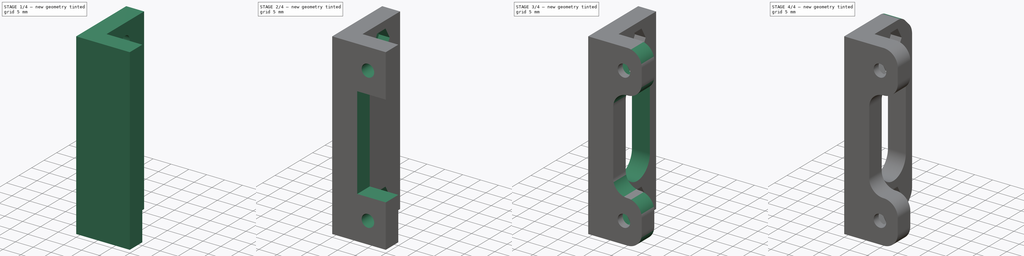
[diagram: build sequence overview — one tinted view per stage of 4, left to right]
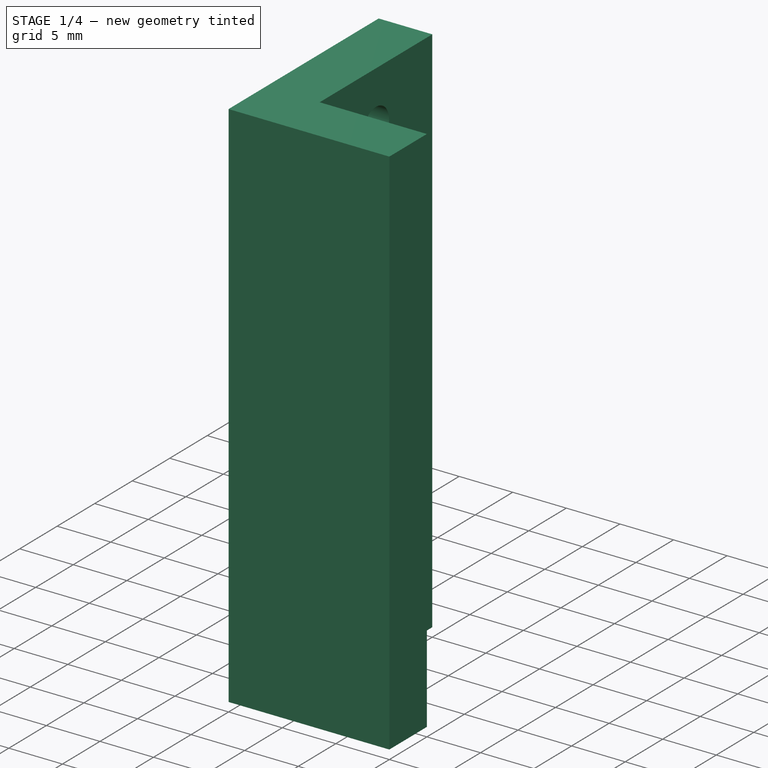
[diagram: stage 1 of 4 — iso view after this stage's code; geometry added in this stage tinted green]
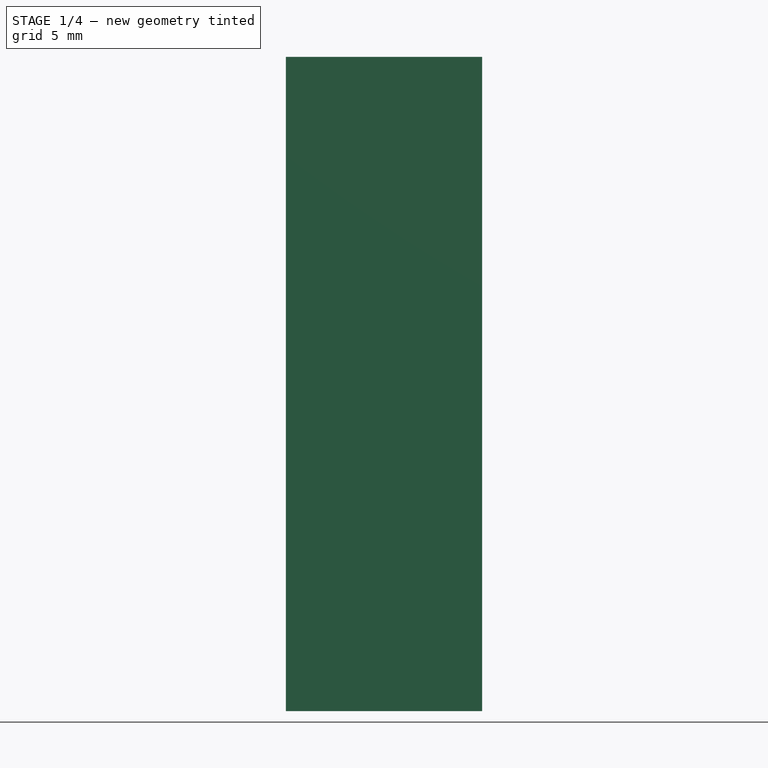
[diagram: stage 1 of 4 — front view after this stage's code; geometry added in this stage tinted green]
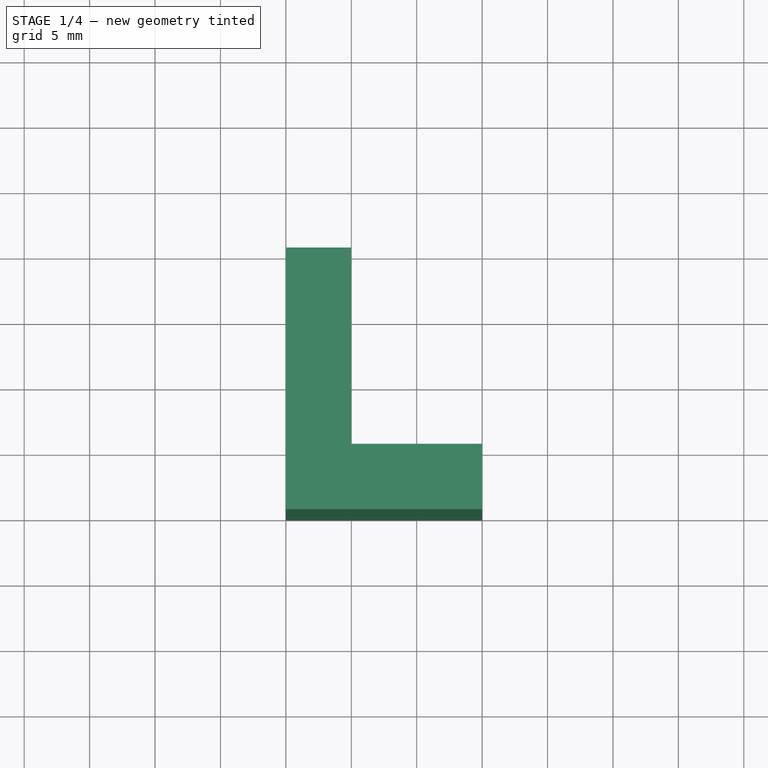
[diagram: stage 1 of 4 — top view after this stage's code; geometry added in this stage tinted green]
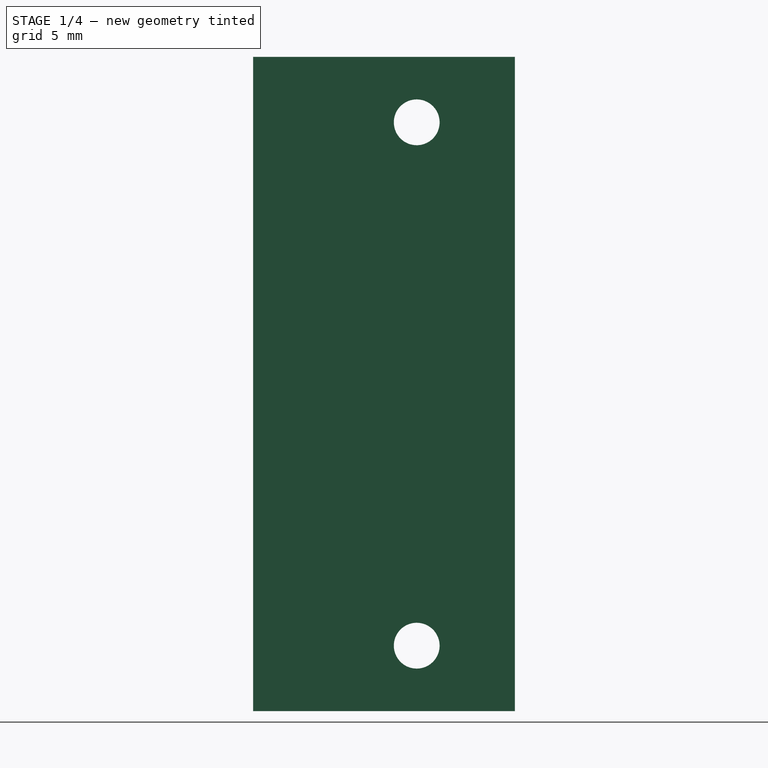
[diagram: stage 1 of 4 — right view after this stage's code; geometry added in this stage tinted green]
FCSTD DOCUMENT  (FreeCAD 0.17R13522 (Git))
Label: Mag_Lock_soprano_bracket
License: All rights reserved
LicenseURL: http://en.wikipedia.org/wiki/All_rights_reserved
objects: Sketcher::SketchObject×6, PartDesign::Pocket×5, PartDesign::Fillet×2, PartDesign::Pad×1, PartDesign::Chamfer×1, PartDesign::Body×1
note: 22 computed .brp shape members not serialized (recipe doc carries the construction recipe); baked Part::Feature solids carry a one-line shape summary decoded from their .brp

FEATURE [Sketcher::SketchObject] Sketch
  MapMode = 5
  Support = -> [XY_Plane]
  sketch-geometry (6):
    g0: LineSegment StartX=0 StartY=0 StartZ=0 EndX=15 EndY=0 EndZ=0
    g1: LineSegment StartX=15 StartY=0 StartZ=0 EndX=15 EndY=5 EndZ=0
    g2: LineSegment StartX=15 StartY=5 StartZ=0 EndX=5 EndY=5 EndZ=0
    g3: LineSegment StartX=5 StartY=5 StartZ=0 EndX=5 EndY=20 EndZ=0
    g4: LineSegment StartX=5 StartY=20 StartZ=0 EndX=0 EndY=20 EndZ=0
    g5: LineSegment StartX=0 StartY=20 StartZ=0 EndX=0 EndY=0 EndZ=0
  constraints (17):
    c: Coincident(g-1,g0)
    c: PointOnObject(g0,g-1)
    c: Coincident(g0,g1)
    c: Vertical(g1)
    c: Coincident(g1,g2)
    c: Horizontal(g2)
    c: Coincident(g2,g3)
    c: Vertical(g3)
    c: Coincident(g3,g4)
    c: PointOnObject(g4,g-2)
    c: Horizontal(g4)
    c: Coincident(g4,g5)
    c: Coincident(g5,g0)
    c: Equal(g4,g1)
    c: DistanceX(g0,g0) = 15
    c: DistanceY(g1,g1) = 5
    c: DistanceY(g5,g5) = 20
FEATURE [PartDesign::Pad] Pad
  Length = 50
  Length2 = 100
  Midplane = true
  Profile = -> Sketch
  Type = 0
FEATURE [Sketcher::SketchObject] Sketch001
  MapMode = 5
  Placement = pos=(5,0,0) rot=(0.57735,0.57735,0.57735;2.0944rad)
  Support = -> [Pad]
  sketch-geometry (2):
    g0: Circle CenterX=12.5 CenterY=20 CenterZ=0 NormalX=0 NormalY=0 NormalZ=1 AngleXU=0 Radius=1.75
    g1: Circle CenterX=12.5 CenterY=-20 CenterZ=0 NormalX=0 NormalY=0 NormalZ=1 AngleXU=0 Radius=1.75
  constraints (5):
    c: Equal(g0,g1)
    c: Symmetric(g1,g0,g-1)
    c: Radius(g0) = 1.75
    c: DistanceY(g1,g0) = 40
    c: DistanceX(g1) = 12.5
FEATURE [PartDesign::Pocket] Pocket
  BaseFeature = -> Pad
  Length = 5
  Length2 = 100
  Profile = -> Sketch001
  Type = 1
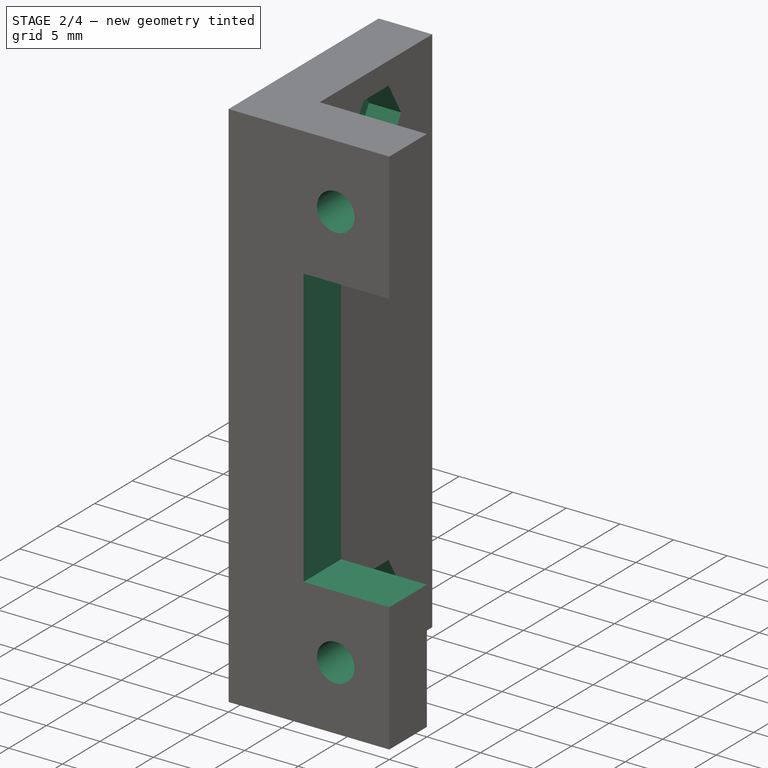
[diagram: stage 2 of 4 — iso view after this stage's code; geometry added in this stage tinted green]
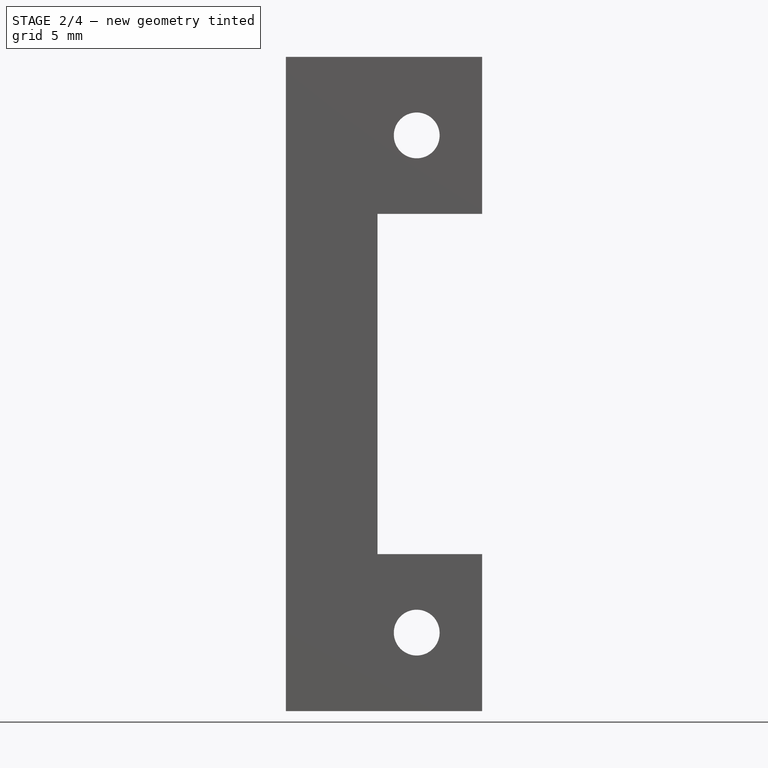
[diagram: stage 2 of 4 — front view after this stage's code; geometry added in this stage tinted green]
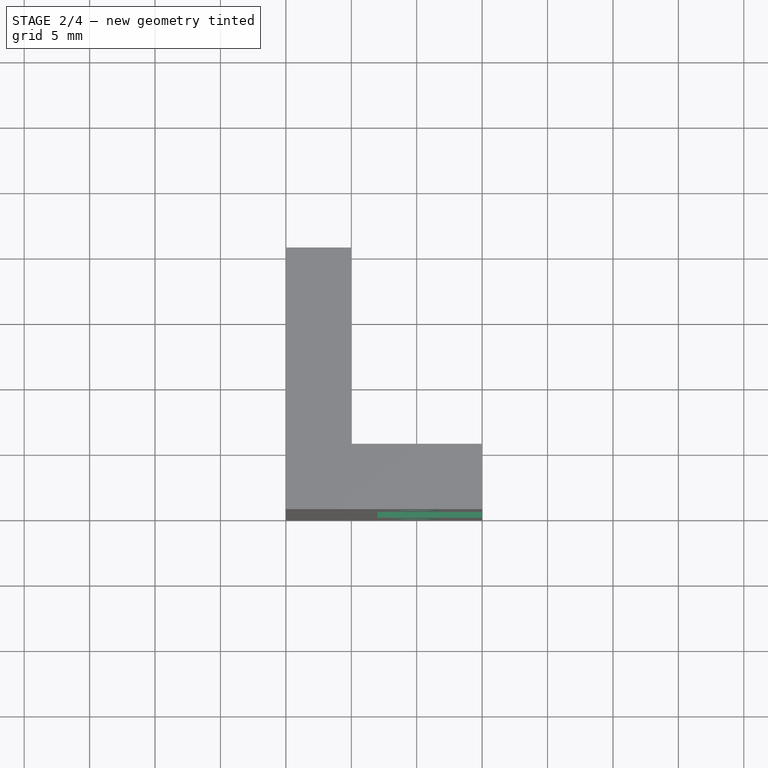
[diagram: stage 2 of 4 — top view after this stage's code; geometry added in this stage tinted green]
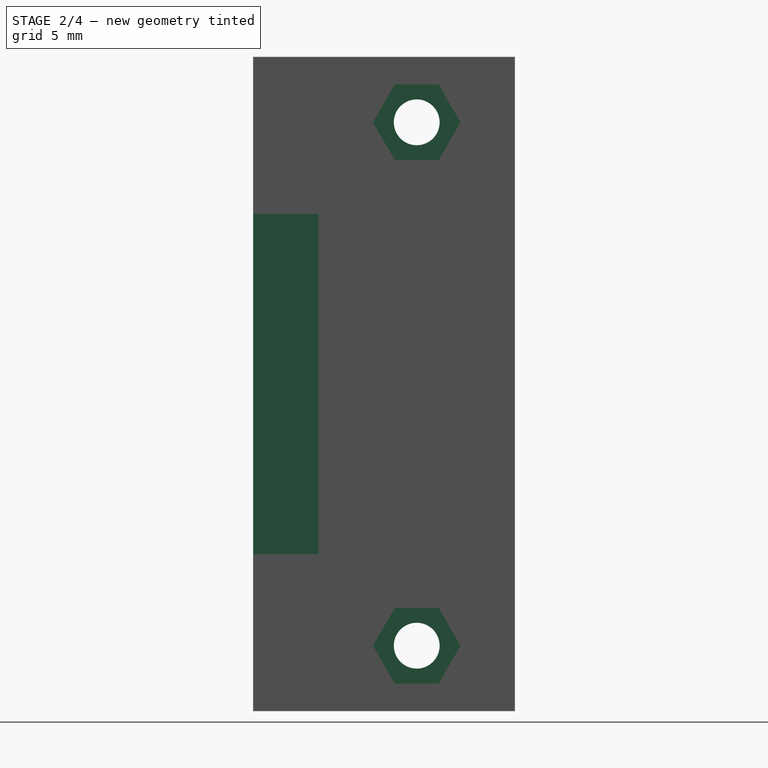
[diagram: stage 2 of 4 — right view after this stage's code; geometry added in this stage tinted green]
FEATURE [Sketcher::SketchObject] Sketch002
  MapMode = 5
  Placement = pos=(5,0,0) rot=(0.57735,0.57735,0.57735;2.0944rad)
  Support = -> [Pocket]
  sketch-geometry (14):
    g0: LineSegment StartX=14.1743 StartY=17.1 StartZ=0 EndX=15.8486 EndY=20 EndZ=0
    g1: LineSegment StartX=15.8486 StartY=20 StartZ=0 EndX=14.1743 EndY=22.9 EndZ=0
    g2: LineSegment StartX=14.1743 StartY=22.9 StartZ=0 EndX=10.8257 EndY=22.9 EndZ=0
    g3: LineSegment StartX=10.8257 StartY=22.9 StartZ=0 EndX=9.15137 EndY=20 EndZ=0
    g4: LineSegment StartX=9.15137 StartY=20 StartZ=0 EndX=10.8257 EndY=17.1 EndZ=0
    g5: LineSegment StartX=10.8257 StartY=17.1 StartZ=0 EndX=14.1743 EndY=17.1 EndZ=0
    g6: Circle [constr] CenterX=12.5 CenterY=20 CenterZ=0 NormalX=0 NormalY=0 NormalZ=1 AngleXU=0 Radius=3.34863
    g7: LineSegment StartX=14.1743 StartY=-22.9 StartZ=0 EndX=15.8486 EndY=-20 EndZ=0
    g8: LineSegment StartX=15.8486 StartY=-20 StartZ=0 EndX=14.1743 EndY=-17.1 EndZ=0
    g9: LineSegment StartX=14.1743 StartY=-17.1 StartZ=0 EndX=10.8257 EndY=-17.1 EndZ=0
    g10: LineSegment StartX=10.8257 StartY=-17.1 StartZ=0 EndX=9.15137 EndY=-20 EndZ=0
    g11: LineSegment StartX=9.15137 StartY=-20 StartZ=0 EndX=10.8257 EndY=-22.9 EndZ=0
    g12: LineSegment StartX=10.8257 StartY=-22.9 StartZ=0 EndX=14.1743 EndY=-22.9 EndZ=0
    g13: Circle [constr] CenterX=12.5 CenterY=-20 CenterZ=0 NormalX=0 NormalY=0 NormalZ=1 AngleXU=0 Radius=3.34863
  constraints (33):
    c: Coincident(g0,g1)
    c: Coincident(g1,g2)
    c: Coincident(g2,g3)
    c: Coincident(g3,g4)
    c: Coincident(g4,g5)
    c: Coincident(g5,g0)
    c: Equal(g0, g1-g5) x5
    c: PointOnObject(g0,g6)
    c: PointOnObject(g1,g6)
    c: PointOnObject(g2,g6)
    c: PointOnObject(g3,g6)
    c: PointOnObject(g4,g6)
    c: PointOnObject(g5,g6)
    c: Coincident(g7,g8)
    c: Coincident(g8,g9)
    c: Coincident(g9,g10)
    c: Coincident(g10,g11)
    c: Coincident(g11,g12)
    c: Coincident(g12,g7)
    c: Equal(g7, g8-g12) x5
    c: PointOnObject(g7,g13)
    c: PointOnObject(g8,g13)
    c: PointOnObject(g9,g13)
    c: PointOnObject(g10,g13)
    c: PointOnObject(g11,g13)
    c: PointOnObject(g12,g13)
    c: Horizontal(g5)
    c: Horizontal(g12)
    c: Equal(g13,g6)
    c: DistanceY(g0,g1) = 5.8
    c: Symmetric(g6,g13,g-1)
    c: DistanceX(g6) = 12.5
    c: DistanceY(g6) = 20
FEATURE [PartDesign::Pocket] Pocket001
  BaseFeature = -> Pocket
  Length = 3
  Length2 = 100
  Profile = -> Sketch002
  Type = 0
FEATURE [Sketcher::SketchObject] Sketch003
  MapMode = 5
  Placement = pos=(0,0,0) rot=(1,0,0;1.5708rad)
  Support = -> [Pocket001]
  sketch-geometry (6):
    g0: Circle CenterX=10 CenterY=19 CenterZ=0 NormalX=0 NormalY=0 NormalZ=1 AngleXU=0 Radius=1.75
    g1: Circle CenterX=10 CenterY=-19 CenterZ=0 NormalX=0 NormalY=0 NormalZ=1 AngleXU=0 Radius=1.75
    g2: LineSegment StartX=7 StartY=13 StartZ=0 EndX=19 EndY=13 EndZ=0
    g3: LineSegment StartX=19 StartY=13 StartZ=0 EndX=19 EndY=-13 EndZ=0
    g4: LineSegment StartX=19 StartY=-13 StartZ=0 EndX=7 EndY=-13 EndZ=0
    g5: LineSegment StartX=7 StartY=-13 StartZ=0 EndX=7 EndY=13 EndZ=0
  constraints (17):
    c: Symmetric(g0,g1,g-1)
    c: DistanceY(g1,g0) = 38
    c: Equal(g0,g1)
    c: Radius(g0) = 1.75
    c: Coincident(g2,g3)
    c: Coincident(g3,g4)
    c: Coincident(g4,g5)
    c: Coincident(g5,g2)
    c: Horizontal(g2)
    c: Horizontal(g4)
    c: Vertical(g3)
    c: Vertical(g5)
    c: DistanceX(g2,g2) = 12
    c: DistanceY(g3,g3) = 26
    c: DistanceX(g4) = 7
    c: Symmetric(g3,g2,g-1)
    c: DistanceX(g1) = 10
FEATURE [PartDesign::Pocket] Pocket002
  BaseFeature = -> Pocket001
  Length = 5
  Length2 = 100
  Profile = -> Sketch003
  Type = 1
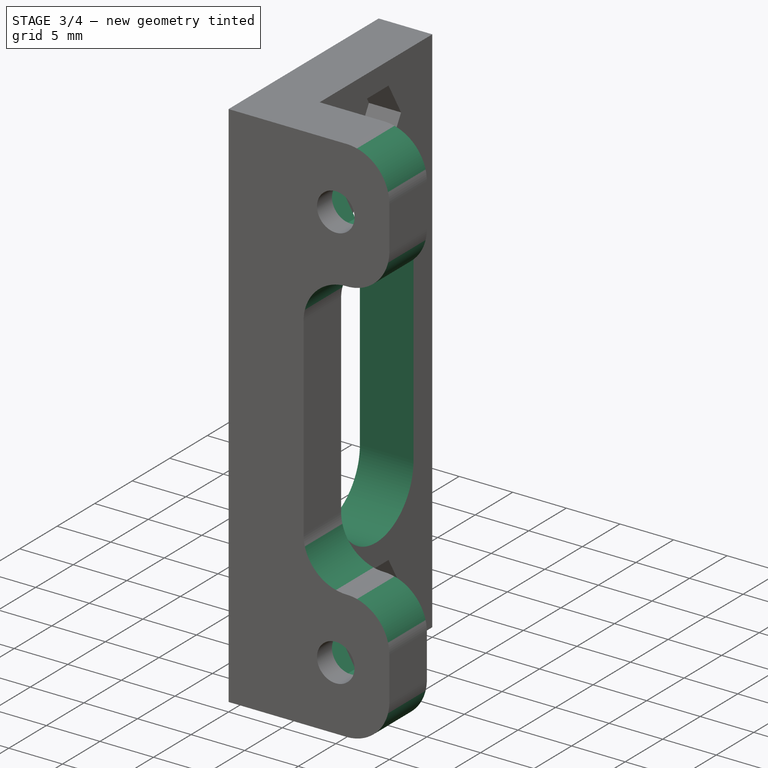
[diagram: stage 3 of 4 — iso view after this stage's code; geometry added in this stage tinted green]
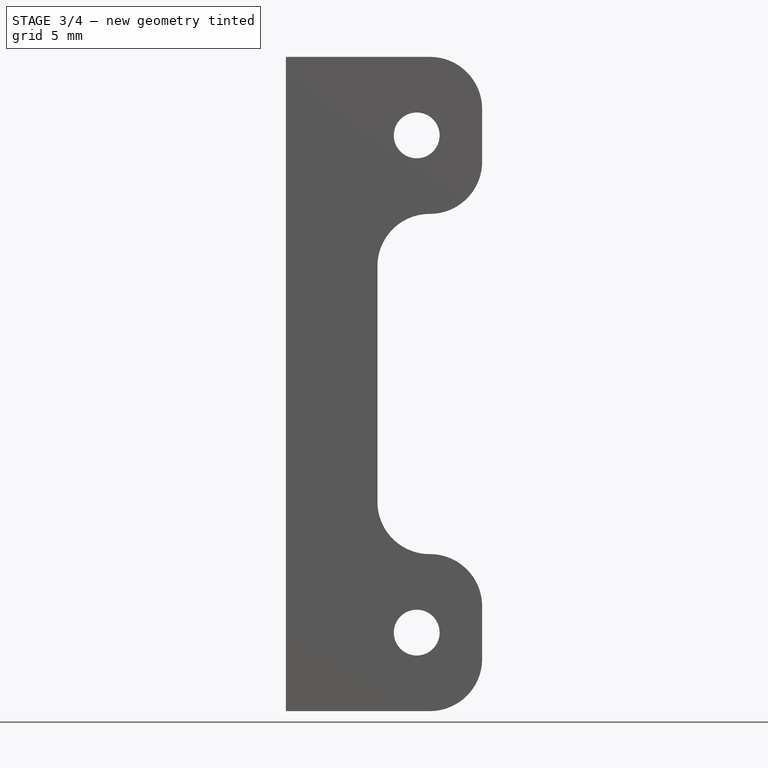
[diagram: stage 3 of 4 — front view after this stage's code; geometry added in this stage tinted green]
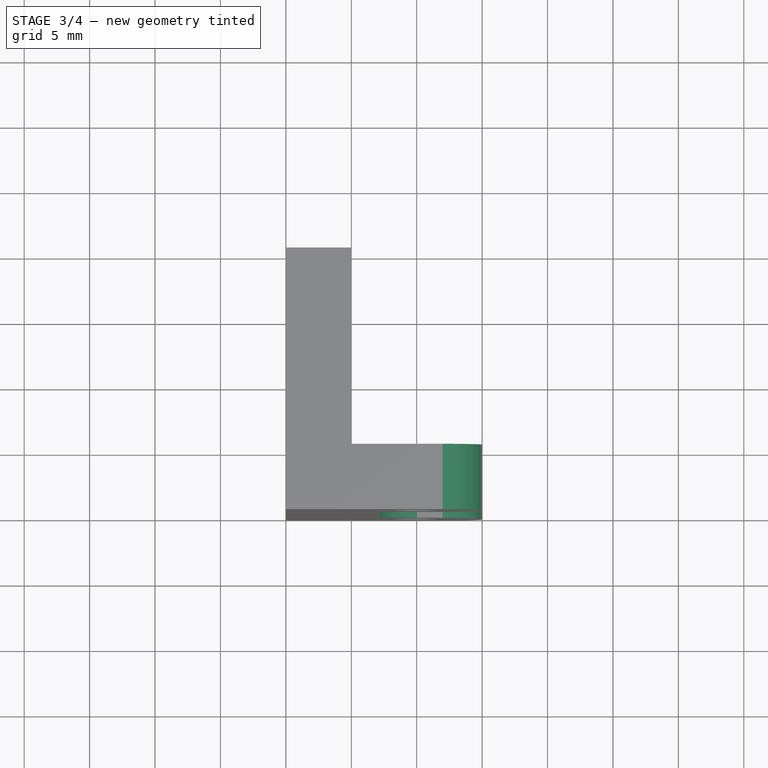
[diagram: stage 3 of 4 — top view after this stage's code; geometry added in this stage tinted green]
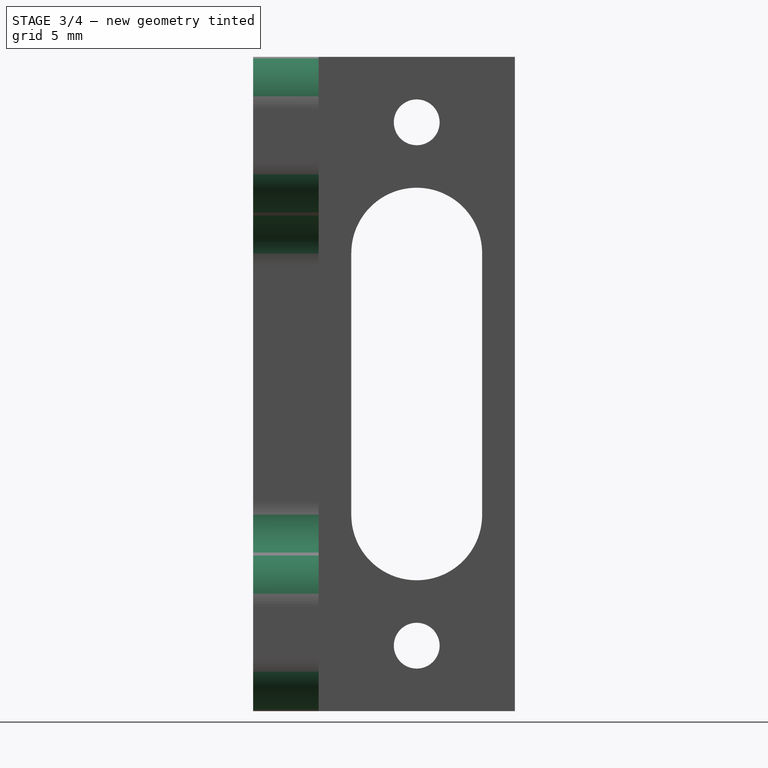
[diagram: stage 3 of 4 — right view after this stage's code; geometry added in this stage tinted green]
FEATURE [Sketcher::SketchObject] Sketch004
  MapMode = 5
  Placement = pos=(0,5,0) rot=(0,0.707107,0.707107;3.14159rad)
  Support = -> [Pocket002]
  sketch-geometry (14):
    g0: LineSegment StartX=-6.65137 StartY=19 StartZ=0 EndX=-8.32568 EndY=21.9 EndZ=0
    g1: LineSegment StartX=-8.32568 StartY=21.9 StartZ=0 EndX=-11.6743 EndY=21.9 EndZ=0
    g2: LineSegment StartX=-11.6743 StartY=21.9 StartZ=0 EndX=-13.3486 EndY=19 EndZ=0
    g3: LineSegment StartX=-13.3486 StartY=19 StartZ=0 EndX=-11.6743 EndY=16.1 EndZ=0
    g4: LineSegment StartX=-11.6743 StartY=16.1 StartZ=0 EndX=-8.32568 EndY=16.1 EndZ=0
    g5: LineSegment StartX=-8.32568 StartY=16.1 StartZ=0 EndX=-6.65137 EndY=19 EndZ=0
    g6: Circle [constr] CenterX=-10 CenterY=19 CenterZ=0 NormalX=0 NormalY=0 NormalZ=1 AngleXU=0 Radius=3.34863
    g7: LineSegment StartX=-6.65137 StartY=-19 StartZ=0 EndX=-8.32568 EndY=-16.1 EndZ=0
    g8: LineSegment StartX=-8.32568 StartY=-16.1 StartZ=0 EndX=-11.6743 EndY=-16.1 EndZ=0
    g9: LineSegment StartX=-11.6743 StartY=-16.1 StartZ=0 EndX=-13.3486 EndY=-19 EndZ=0
    g10: LineSegment StartX=-13.3486 StartY=-19 StartZ=0 EndX=-11.6743 EndY=-21.9 EndZ=0
    g11: LineSegment StartX=-11.6743 StartY=-21.9 StartZ=0 EndX=-8.32568 EndY=-21.9 EndZ=0
    g12: LineSegment StartX=-8.32568 StartY=-21.9 StartZ=0 EndX=-6.65137 EndY=-19 EndZ=0
    g13: Circle [constr] CenterX=-10 CenterY=-19 CenterZ=0 NormalX=0 NormalY=0 NormalZ=1 AngleXU=0 Radius=3.34863
  constraints (33):
    c: Coincident(g0,g1)
    c: Coincident(g1,g2)
    c: Coincident(g2,g3)
    c: Coincident(g3,g4)
    c: Coincident(g4,g5)
    c: Coincident(g5,g0)
    c: Equal(g0, g1-g5) x5
    c: PointOnObject(g0,g6)
    c: PointOnObject(g1,g6)
    c: PointOnObject(g2,g6)
    c: PointOnObject(g3,g6)
    c: PointOnObject(g4,g6)
    c: PointOnObject(g5,g6)
    c: Coincident(g7,g8)
    c: Coincident(g8,g9)
    c: Coincident(g9,g10)
    c: Coincident(g10,g11)
    c: Coincident(g11,g12)
    c: Coincident(g12,g7)
    c: Equal(g7, g8-g12) x5
    c: PointOnObject(g7,g13)
    c: PointOnObject(g8,g13)
    c: PointOnObject(g9,g13)
    c: PointOnObject(g10,g13)
    c: PointOnObject(g11,g13)
    c: PointOnObject(g12,g13)
    c: Symmetric(g13,g6,g-1)
    c: DistanceY(g13,g6) = 38
    c: Horizontal(g4)
    c: Horizontal(g11)
    c: Equal(g13,g6)
    c: DistanceY(g3,g1) = 5.8
    c: DistanceX(g6) = -10
FEATURE [PartDesign::Pocket] Pocket003
  BaseFeature = -> Pocket002
  Length = 3
  Length2 = 100
  Profile = -> Sketch004
  Type = 0
FEATURE [PartDesign::Fillet] Fillet
  Base = -> Pocket003 [Edge11,Edge17,Edge18,Edge20,Edge22,Edge25]
  BaseFeature = -> Pocket003
  Radius = 3.99
FEATURE [Sketcher::SketchObject] Sketch005
  MapMode = 5
  Placement = pos=(5,0,0) rot=(0.57735,0.57735,0.57735;2.0944rad)
  Support = -> [Fillet]
  sketch-geometry (4):
    g0: ArcOfCircle CenterX=12.5 CenterY=10 CenterZ=0 NormalX=0 NormalY=0 NormalZ=1 AngleXU=0 Radius=5 StartAngle=0 EndAngle=3.14159
    g1: ArcOfCircle CenterX=12.5 CenterY=-10 CenterZ=0 NormalX=0 NormalY=0 NormalZ=1 AngleXU=0 Radius=5 StartAngle=3.14159 EndAngle=6.28319
    g2: LineSegment StartX=7.5 StartY=10 StartZ=0 EndX=7.5 EndY=-10 EndZ=0
    g3: LineSegment StartX=17.5 StartY=10 StartZ=0 EndX=17.5 EndY=-10 EndZ=0
  constraints (10):
    c: Tangent(g0,g3) = 1.5708
    c: Tangent(g0,g2) = -1.5708
    c: Tangent(g2,g1) = -1.5708
    c: Tangent(g3,g1) = 1.5708
    c: Vertical(g2)
    c: Equal(g0,g1)
    c: Symmetric(g0,g1,g-1)
    c: DistanceY(g3,g3) = 20
    c: DistanceX(g0) = 12.5
    c: Radius(g0) = 5
FEATURE [PartDesign::Pocket] Pocket004
  BaseFeature = -> Fillet
  Length = 5
  Length2 = 100
  Profile = -> Sketch005
  Type = 1
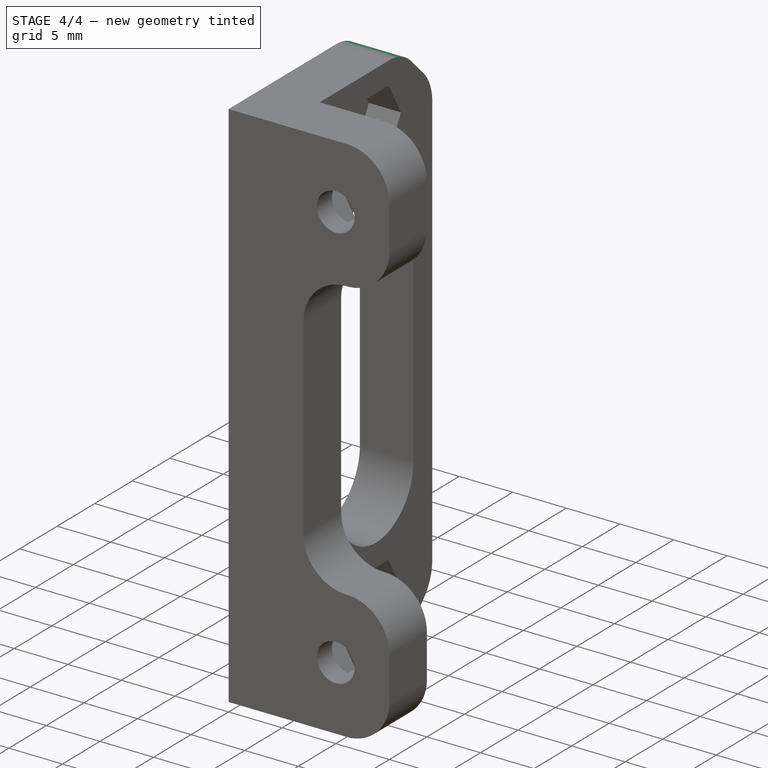
[diagram: stage 4 of 4 — iso view after this stage's code; geometry added in this stage tinted green]
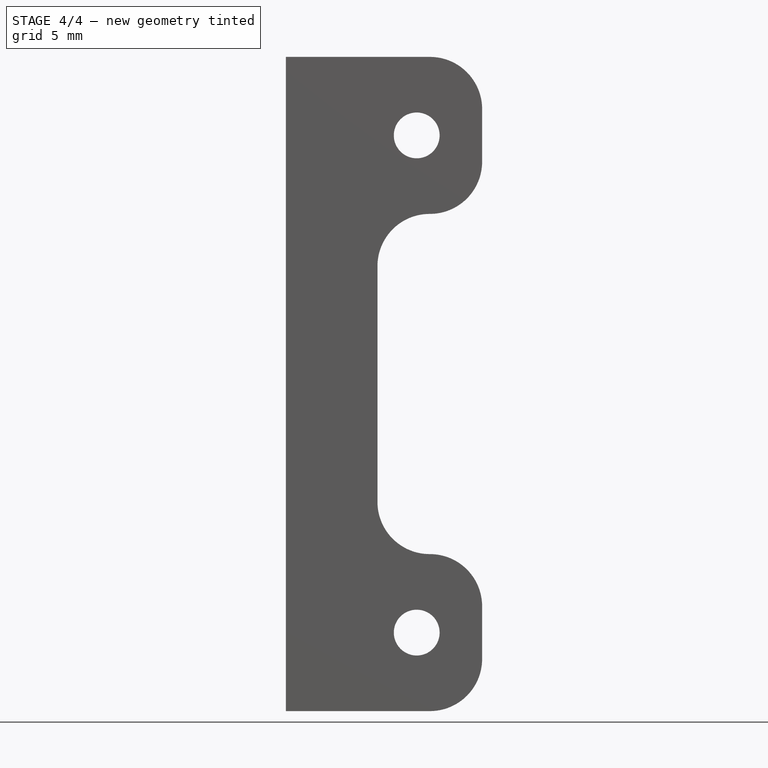
[diagram: stage 4 of 4 — front view after this stage's code; geometry added in this stage tinted green]
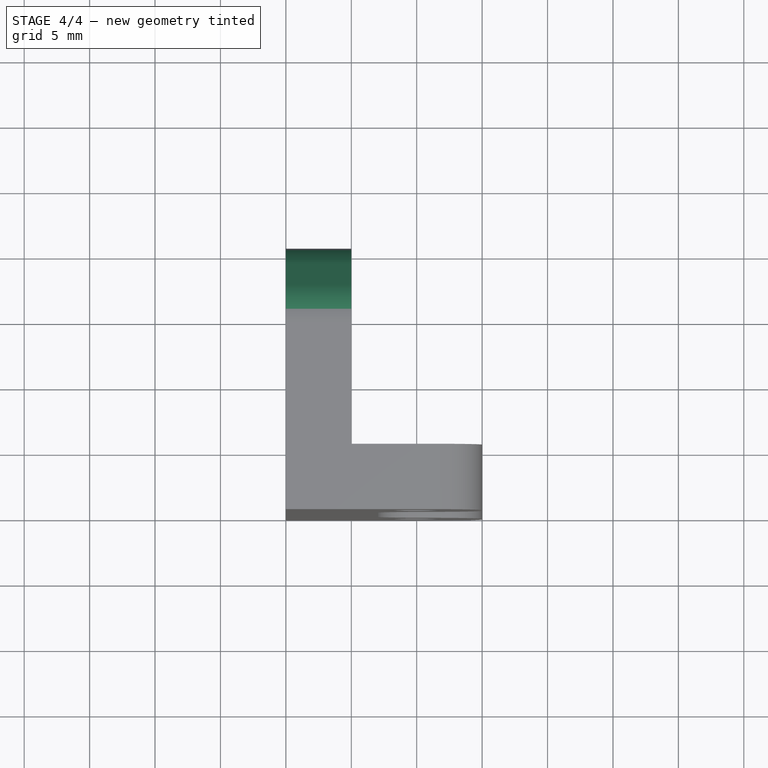
[diagram: stage 4 of 4 — top view after this stage's code; geometry added in this stage tinted green]
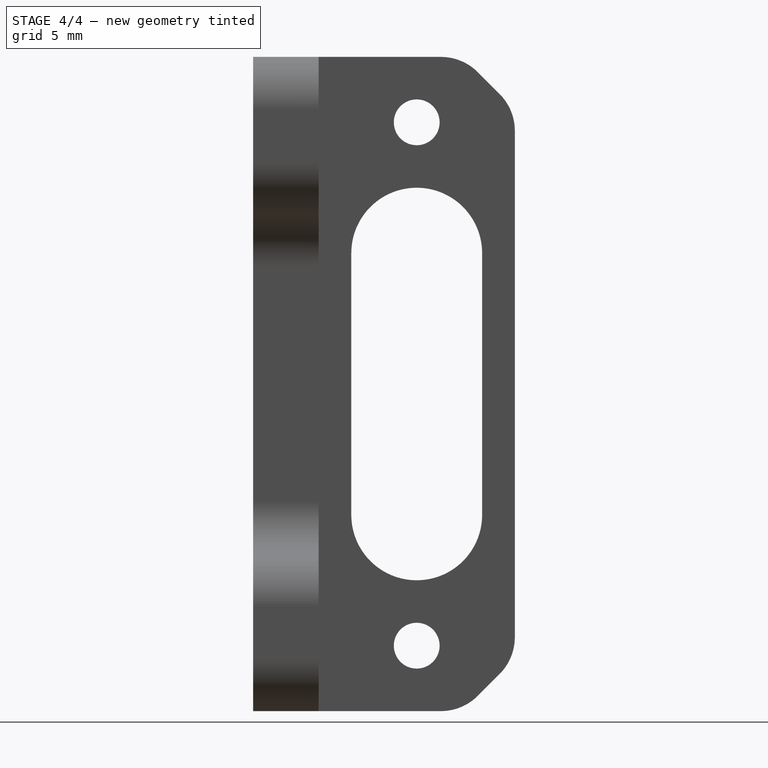
[diagram: stage 4 of 4 — right view after this stage's code; geometry added in this stage tinted green]
FEATURE [PartDesign::Chamfer] Chamfer
  Base = -> Pocket004 [Edge20,Edge36]
  BaseFeature = -> Pocket004
  Size = 4
FEATURE [PartDesign::Fillet] Fillet001
  Base = -> Chamfer [Edge19,Edge79,Edge2,Edge80]
  BaseFeature = -> Chamfer
  Radius = 4
FEATURE [PartDesign::Body] Body
  Group = -> [Sketch,Pad,Sketch001,Pocket,Sketch002,Pocket001,Sketch003,Pocket002,Sketch004,Pocket003,Fillet,Sketch005,Pocket004,Chamfer,Fillet001]
  Origin = -> Origin
  Tip = -> Fillet001
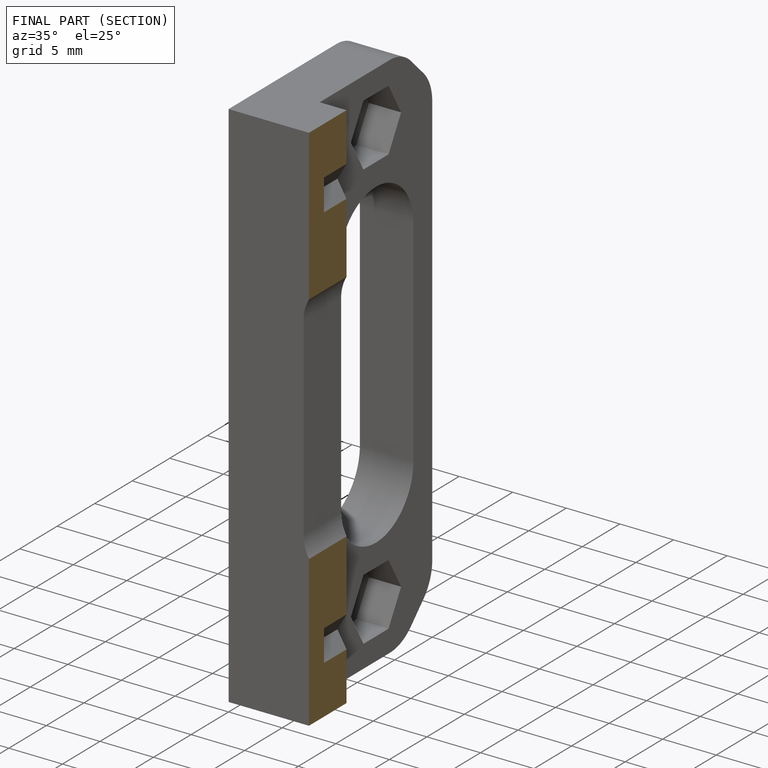
[diagram: finished part — half-section view (interior)]
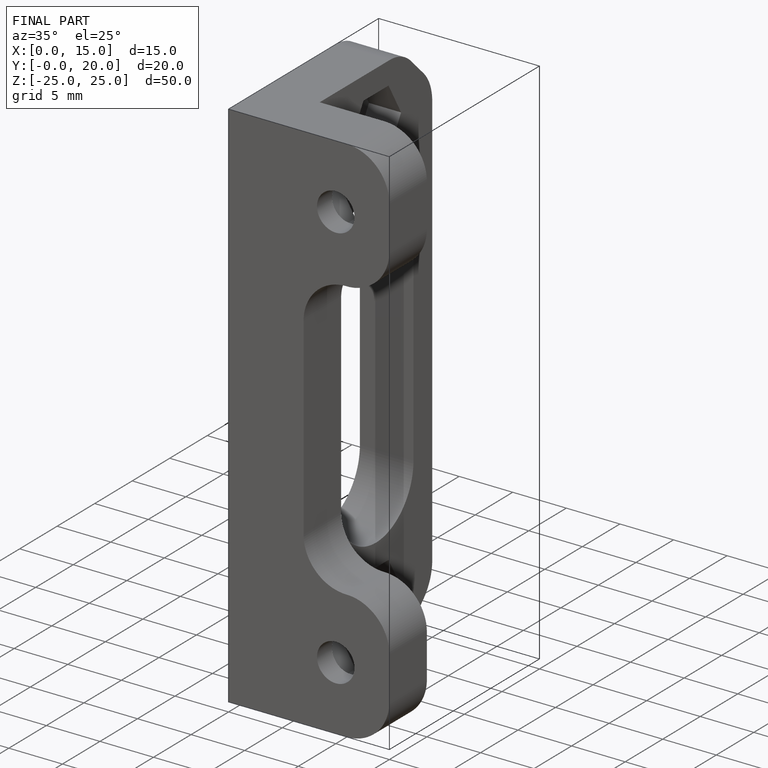
[diagram: finished part — iso view with bounding-box wireframe]
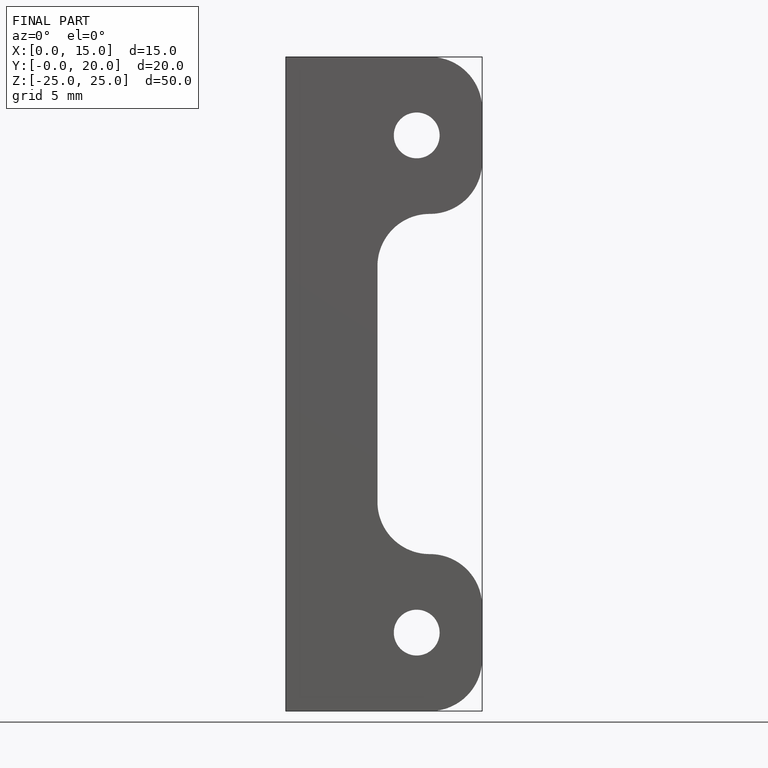
[diagram: finished part — front view with bounding-box wireframe]
